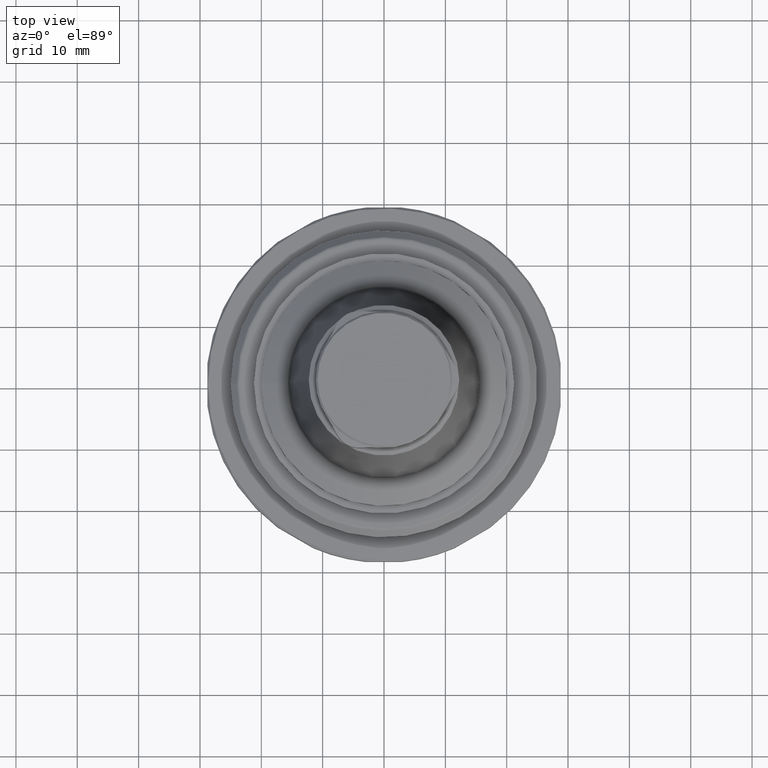
[diagram: clean part render]
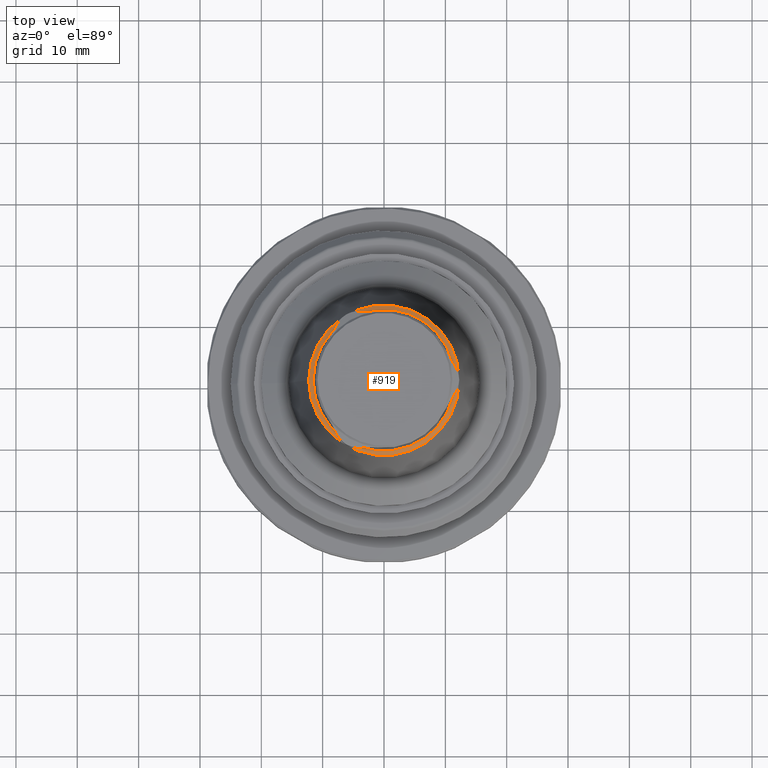
[diagram: same view with one face highlighted and labeled with its STEP entity id]
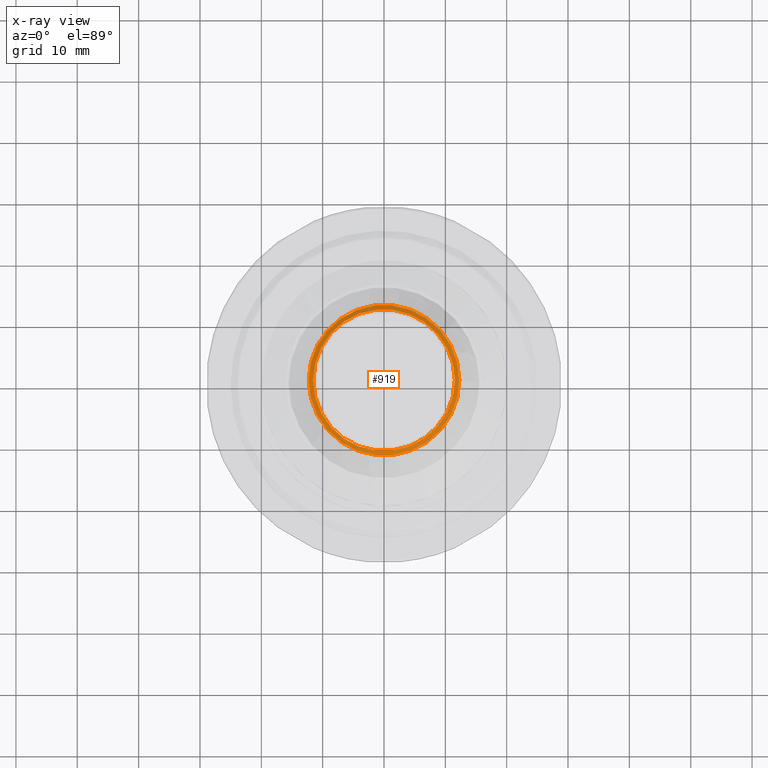
[diagram: x-ray of the same camera — body ghosted, the highlighted face saturated]
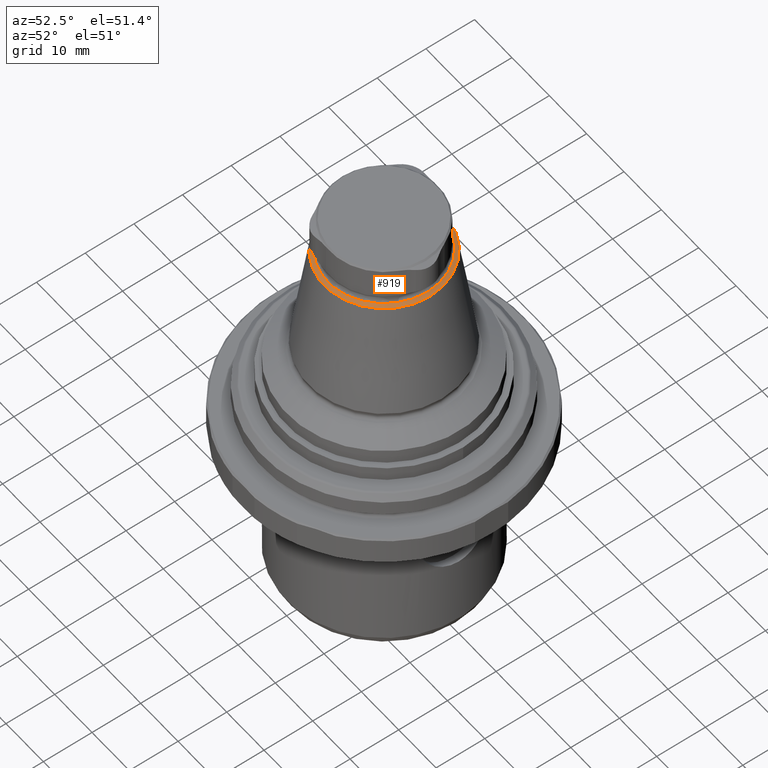
[diagram: same view with one face highlighted and labeled with its STEP entity id]
A machine part, top view. The second image highlights one B-rep face of the part: STEP entity #919.
The next image is the same camera in x-ray: the body ghosted, the highlighted face saturated — about 0% of this face is hidden behind the body in this view.
A second angle (auxiliary view) of the same face is appended — the face is thin or edge-on in the first view.
In plain terms, the highlighted conical surface has half-angle 60 deg.
Its self-contained STEP definition (entity closure, byte-faithful):
#32=CONICAL_SURFACE('',#1014,12.2706905250473,1.0471975511966);
#257=ORIENTED_EDGE('',*,*,#457,.T.);
#258=ORIENTED_EDGE('',*,*,#458,.F.);
#457=EDGE_CURVE('',#564,#564,#637,.T.);
#458=EDGE_CURVE('',#565,#565,#638,.T.);
#564=VERTEX_POINT('',#1555);
#565=VERTEX_POINT('',#1558);
#637=CIRCLE('',#1013,11.55);
#638=CIRCLE('',#1015,12.2706905250473);
#702=EDGE_LOOP('',(#257));
#703=EDGE_LOOP('',(#258));
#798=FACE_BOUND('',#702,.T.);
#799=FACE_BOUND('',#703,.T.);
#919=ADVANCED_FACE('',(#798,#799),#32,.T.);
#1013=AXIS2_PLACEMENT_3D('',#1554,#1185,#1186);
#1014=AXIS2_PLACEMENT_3D('',#1556,#1187,#1188);
#1015=AXIS2_PLACEMENT_3D('',#1557,#1189,#1190);
#1185=DIRECTION('',(-4.20111564119382E-16,-8.51929323965368E-24,-1.));
#1186=DIRECTION('',(-1.,9.77164313006873E-16,4.20111561806759E-16));
#1187=DIRECTION('',(-4.20111564119382E-16,-8.51929323965368E-24,-1.));
#1188=DIRECTION('',(-1.,9.77164313006873E-16,4.20111561806759E-16));
#1189=DIRECTION('',(-4.20111564119382E-16,-8.51929323965368E-24,-1.));
#1190=DIRECTION('',(-1.,9.77164313006873E-16,4.20111561806759E-16));
#1554=CARTESIAN_POINT('',(-7.13460220486001E-14,-9.81645348193806E-14,38.9650908686385));
#1555=CARTESIAN_POINT('',(-11.5500000000001,-8.68782870041512E-14,38.9650908686385));
#1556=CARTESIAN_POINT('',(-7.15208266342396E-14,-9.81645348229254E-14,38.549));
#1557=CARTESIAN_POINT('',(-7.15208266342396E-14,-9.81645348229254E-14,38.549));
#1558=CARTESIAN_POINT('',(-12.2706905250474,-8.61740539458976E-14,38.549));